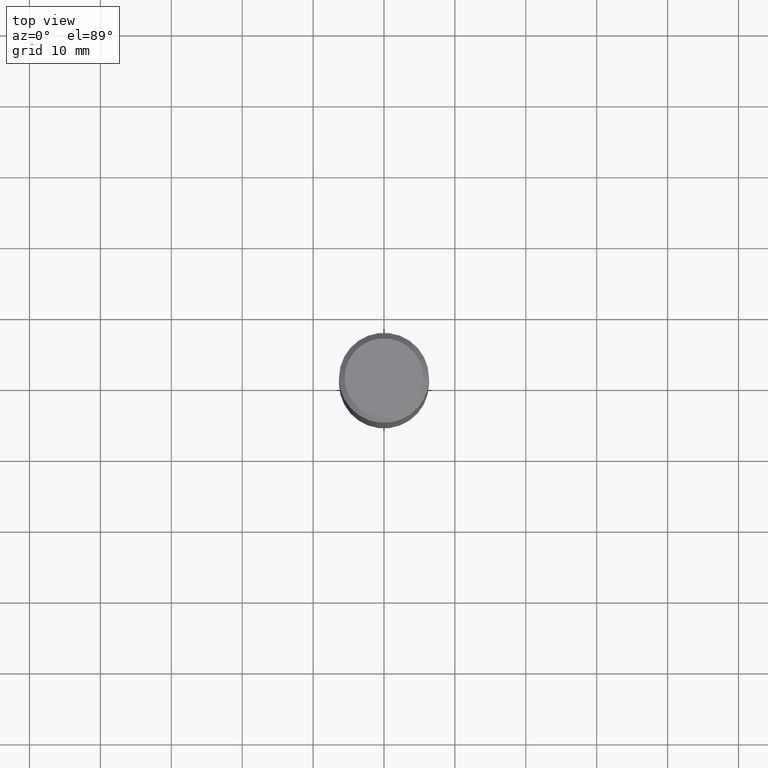
[diagram: clean part render]
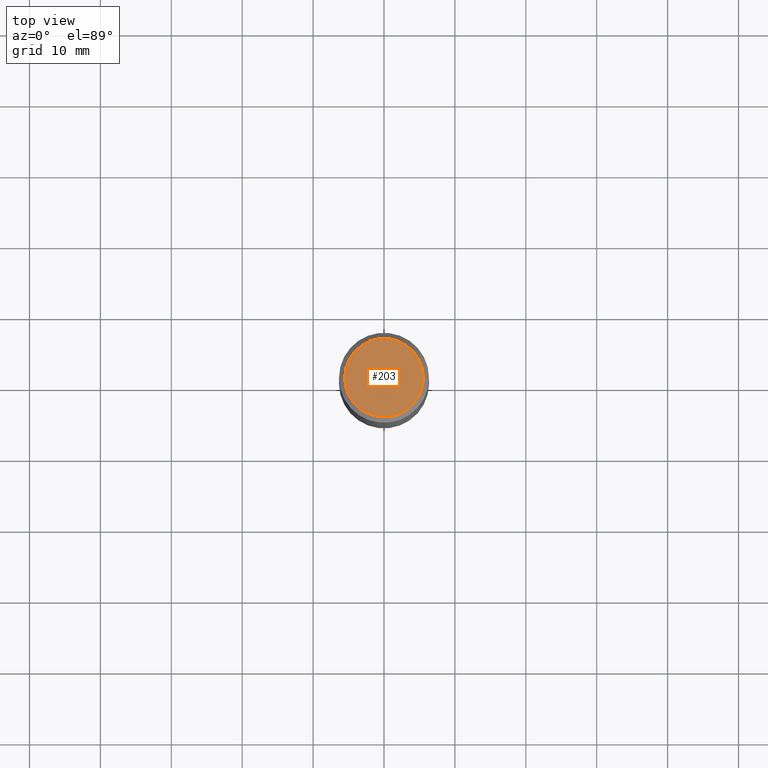
[diagram: same view with one face highlighted and labeled with its STEP entity id]
A machine part, top view. The second image highlights one B-rep face of the part: STEP entity #203.
In plain terms, the highlighted planar face has unit normal (0, -0, -1).
Its self-contained STEP definition (entity closure, byte-faithful):
#27 = FACE_OUTER_BOUND ( 'NONE', #356, .T. ) ;
#49 = AXIS2_PLACEMENT_3D ( 'NONE', #246, #110, #254 ) ;
#56 = EDGE_CURVE ( 'NONE', #227, #362, #363, .T. ) ;
#95 = DIRECTION ( 'NONE',  ( 1.000000000000000000, -6.982962677686266711E-15, 4.880466792705915158E-29 ) ) ;
#110 = DIRECTION ( 'NONE',  ( -2.445468806185136597E-29, 3.491481338843145583E-15, 1.000000000000000000 ) ) ;
#147 = ORIENTED_EDGE ( 'NONE', *, *, #301, .T. ) ;
#162 = PLANE ( 'NONE',  #442 ) ;
#203 = ADVANCED_FACE ( 'NONE', ( #27 ), #162, .F. ) ;
#212 = ORIENTED_EDGE ( 'NONE', *, *, #56, .T. ) ;
#227 = VERTEX_POINT ( 'NONE', #310 ) ;
#246 = CARTESIAN_POINT ( 'NONE',  ( 1.325193512763255586E-44, -1.892025123553597709E-30, -5.418975328622247529E-16 ) ) ;
#254 = DIRECTION ( 'NONE',  ( 1.000000000000000000, -6.982962677686266711E-15, 4.880466792705915158E-29 ) ) ;
#265 = AXIS2_PLACEMENT_3D ( 'NONE', #313, #274, #95 ) ;
#270 = CIRCLE ( 'NONE', #49, 0.2187500000000003053 ) ;
#274 = DIRECTION ( 'NONE',  ( -2.445468806185136597E-29, 3.491481338843145583E-15, 1.000000000000000000 ) ) ;
#301 = EDGE_CURVE ( 'NONE', #362, #227, #270, .T. ) ;
#308 = DIRECTION ( 'NONE',  ( 2.438088387897960049E-29, -3.491481338843145188E-15, -1.000000000000000000 ) ) ;
#310 = CARTESIAN_POINT ( 'NONE',  ( 0.2187500000000003053, -1.662483614147129232E-15, -5.418975328622136103E-16 ) ) ;
#313 = CARTESIAN_POINT ( 'NONE',  ( 1.325193512763255586E-44, -1.892025123553597709E-30, -5.418975328622247529E-16 ) ) ;
#314 = DIRECTION ( 'NONE',  ( -1.000000000000000000, 6.982962677686265922E-15, -4.876176775795935793E-29 ) ) ;
#356 = EDGE_LOOP ( 'NONE', ( #147, #212 ) ) ;
#362 = VERTEX_POINT ( 'NONE', #454 ) ;
#363 = CIRCLE ( 'NONE', #265, 0.2187500000000003053 ) ;
#417 = CARTESIAN_POINT ( 'NONE',  ( 6.625967563816279176E-45, -9.460125617767990298E-31, -2.709487664311124258E-16 ) ) ;
#442 = AXIS2_PLACEMENT_3D ( 'NONE', #417, #308, #314 ) ;
#454 = CARTESIAN_POINT ( 'NONE',  ( -0.2187500000000003053, 1.582077481663294407E-15, -5.418975328622355998E-16 ) ) ;